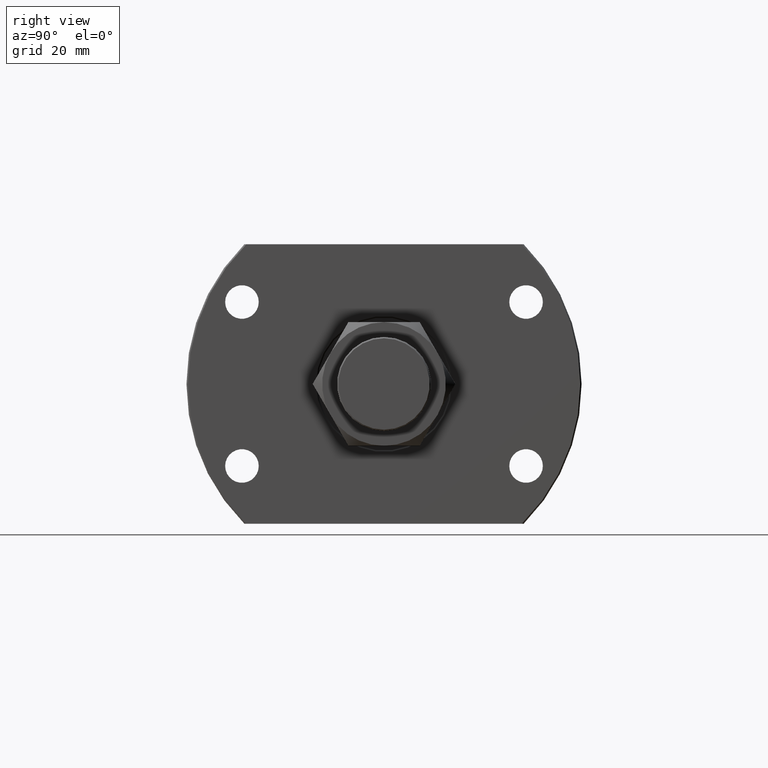
[diagram: clean part render]
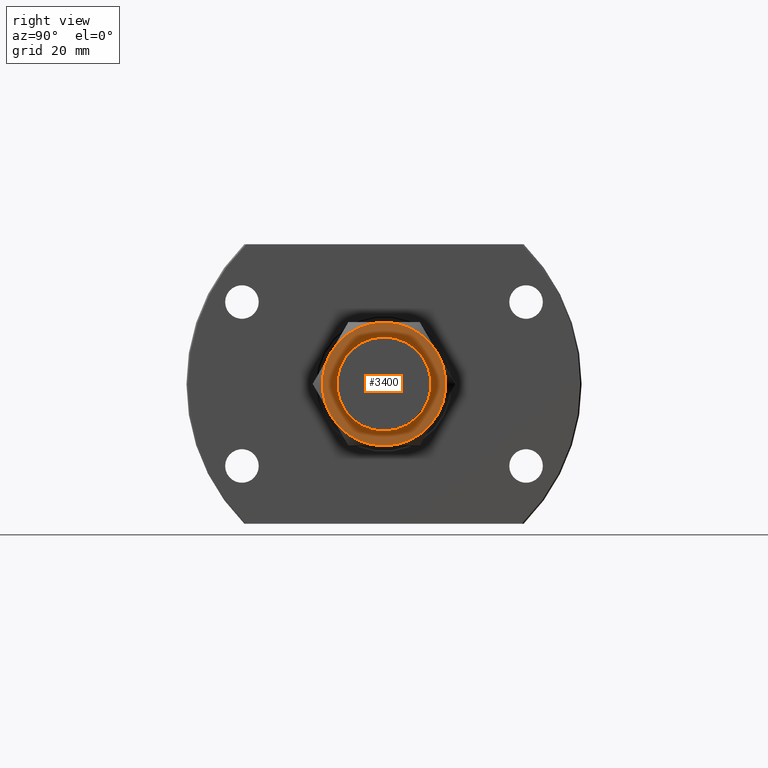
[diagram: same view with one face highlighted and labeled with its STEP entity id]
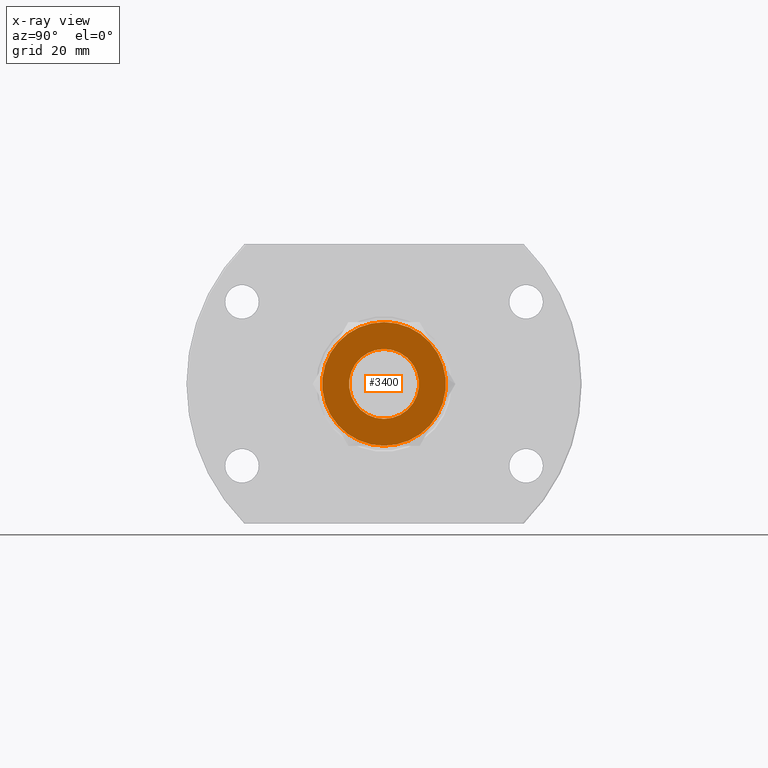
[diagram: x-ray of the same camera — body ghosted, the highlighted face saturated]
A machine part, right view. The second image highlights one B-rep face of the part: STEP entity #3400.
The next image is the same camera in x-ray: the body ghosted, the highlighted face saturated — about 0% of this face is hidden behind the body in this view.
In plain terms, the highlighted planar face has unit normal (1, 0, 0).
Its self-contained STEP definition (entity closure, byte-faithful):
#194 = DIRECTION ( 'NONE',  ( 1.000000000000000000, 0.000000000000000000, 0.000000000000000000 ) ) ;
#203 = CARTESIAN_POINT ( 'NONE',  ( 13.00000000000000000, 0.000000000000000000, 27.99999999999999645 ) ) ;
#348 = VERTEX_POINT ( 'NONE', #4882 ) ;
#407 = ORIENTED_EDGE ( 'NONE', *, *, #1292, .T. ) ;
#443 = CIRCLE ( 'NONE', #3271, 22.99999999999999645 ) ;
#538 = CIRCLE ( 'NONE', #1283, 13.00000000000000000 ) ;
#572 = ORIENTED_EDGE ( 'NONE', *, *, #3226, .T. ) ;
#651 = CARTESIAN_POINT ( 'NONE',  ( 0.000000000000000000, 0.000000000000000000, 28.00000000000000000 ) ) ;
#676 = FACE_BOUND ( 'NONE', #4823, .T. ) ;
#751 = PLANE ( 'NONE',  #4411 ) ;
#778 = VERTEX_POINT ( 'NONE', #3655 ) ;
#829 = EDGE_CURVE ( 'NONE', #4200, #2683, #3829, .T. ) ;
#923 = CARTESIAN_POINT ( 'NONE',  ( 0.000000000000000000, 0.000000000000000000, 28.00000000000000000 ) ) ;
#944 = ORIENTED_EDGE ( 'NONE', *, *, #3963, .T. ) ;
#986 = DIRECTION ( 'NONE',  ( 1.000000000000000000, 0.000000000000000000, 0.000000000000000000 ) ) ;
#995 = DIRECTION ( 'NONE',  ( 1.000000000000000000, 0.000000000000000000, 0.000000000000000000 ) ) ;
#1144 = ORIENTED_EDGE ( 'NONE', *, *, #829, .T. ) ;
#1283 = AXIS2_PLACEMENT_3D ( 'NONE', #1726, #1360, #986 ) ;
#1292 = EDGE_CURVE ( 'NONE', #2601, #3393, #2293, .T. ) ;
#1339 = CARTESIAN_POINT ( 'NONE',  ( 0.000000000000000000, 0.000000000000000000, 28.00000000000000000 ) ) ;
#1360 = DIRECTION ( 'NONE',  ( -0.000000000000000000, -0.000000000000000000, -1.000000000000000000 ) ) ;
#1414 = AXIS2_PLACEMENT_3D ( 'NONE', #4801, #4775, #995 ) ;
#1435 = AXIS2_PLACEMENT_3D ( 'NONE', #4104, #4819, #2526 ) ;
#1458 = CARTESIAN_POINT ( 'NONE',  ( -11.49999999999999822, 19.91858428704208706, 28.00000000000000000 ) ) ;
#1463 = ORIENTED_EDGE ( 'NONE', *, *, #1858, .T. ) ;
#1501 = EDGE_LOOP ( 'NONE', ( #2761, #1463, #407, #572, #1144, #944 ) ) ;
#1503 = DIRECTION ( 'NONE',  ( 1.000000000000000000, 0.000000000000000000, -0.000000000000000000 ) ) ;
#1579 = DIRECTION ( 'NONE',  ( -0.000000000000000000, -0.000000000000000000, -1.000000000000000000 ) ) ;
#1630 = CARTESIAN_POINT ( 'NONE',  ( 0.000000000000000000, 0.000000000000000000, 28.00000000000000000 ) ) ;
#1665 = DIRECTION ( 'NONE',  ( 1.000000000000000000, 0.000000000000000000, 0.000000000000000000 ) ) ;
#1668 = CARTESIAN_POINT ( 'NONE',  ( 0.000000000000000000, 0.000000000000000000, 28.00000000000000000 ) ) ;
#1696 = DIRECTION ( 'NONE',  ( 1.000000000000000000, 0.000000000000000000, 0.000000000000000000 ) ) ;
#1715 = DIRECTION ( 'NONE',  ( 0.000000000000000000, 0.000000000000000000, 1.000000000000000000 ) ) ;
#1726 = CARTESIAN_POINT ( 'NONE',  ( 0.000000000000000000, 0.000000000000000000, 28.00000000000000000 ) ) ;
#1780 = ORIENTED_EDGE ( 'NONE', *, *, #2627, .T. ) ;
#1858 = EDGE_CURVE ( 'NONE', #778, #2601, #443, .T. ) ;
#2006 = CARTESIAN_POINT ( 'NONE',  ( 11.49999999999999822, 19.91858428704208706, 28.00000000000000000 ) ) ;
#2293 = CIRCLE ( 'NONE', #4075, 22.99999999999999645 ) ;
#2473 = AXIS2_PLACEMENT_3D ( 'NONE', #923, #3686, #1696 ) ;
#2526 = DIRECTION ( 'NONE',  ( 1.000000000000000000, 0.000000000000000000, 0.000000000000000000 ) ) ;
#2601 = VERTEX_POINT ( 'NONE', #2006 ) ;
#2627 = EDGE_CURVE ( 'NONE', #3650, #3358, #4557, .T. ) ;
#2657 = FACE_OUTER_BOUND ( 'NONE', #1501, .T. ) ;
#2683 = VERTEX_POINT ( 'NONE', #3192 ) ;
#2761 = ORIENTED_EDGE ( 'NONE', *, *, #2841, .T. ) ;
#2841 = EDGE_CURVE ( 'NONE', #348, #778, #4248, .T. ) ;
#2989 = CARTESIAN_POINT ( 'NONE',  ( -13.00000000000000000, 1.592040838891559095E-15, 27.99999999999999645 ) ) ;
#3041 = AXIS2_PLACEMENT_3D ( 'NONE', #1630, #1579, #3552 ) ;
#3192 = CARTESIAN_POINT ( 'NONE',  ( -11.50000000000000533, -19.91858428704208706, 28.00000000000000000 ) ) ;
#3226 = EDGE_CURVE ( 'NONE', #3393, #4200, #3694, .T. ) ;
#3271 = AXIS2_PLACEMENT_3D ( 'NONE', #1339, #3563, #1665 ) ;
#3358 = VERTEX_POINT ( 'NONE', #2989 ) ;
#3393 = VERTEX_POINT ( 'NONE', #1458 ) ;
#3400 = ADVANCED_FACE ( 'NONE', ( #676, #2657 ), #751, .T. ) ;
#3518 = DIRECTION ( 'NONE',  ( 1.000000000000000000, 0.000000000000000000, 0.000000000000000000 ) ) ;
#3552 = DIRECTION ( 'NONE',  ( 1.000000000000000000, 0.000000000000000000, 0.000000000000000000 ) ) ;
#3563 = DIRECTION ( 'NONE',  ( 0.000000000000000000, 0.000000000000000000, 1.000000000000000000 ) ) ;
#3650 = VERTEX_POINT ( 'NONE', #203 ) ;
#3655 = CARTESIAN_POINT ( 'NONE',  ( 22.99999999999999645, 0.000000000000000000, 28.00000000000000000 ) ) ;
#3686 = DIRECTION ( 'NONE',  ( 0.000000000000000000, 0.000000000000000000, 1.000000000000000000 ) ) ;
#3694 = CIRCLE ( 'NONE', #1435, 22.99999999999999645 ) ;
#3785 = CARTESIAN_POINT ( 'NONE',  ( -22.99999999999999645, 0.000000000000000000, 28.00000000000000000 ) ) ;
#3829 = CIRCLE ( 'NONE', #1414, 22.99999999999999645 ) ;
#3963 = EDGE_CURVE ( 'NONE', #2683, #348, #4556, .T. ) ;
#4075 = AXIS2_PLACEMENT_3D ( 'NONE', #4667, #4245, #3518 ) ;
#4104 = CARTESIAN_POINT ( 'NONE',  ( 0.000000000000000000, 0.000000000000000000, 28.00000000000000000 ) ) ;
#4200 = VERTEX_POINT ( 'NONE', #3785 ) ;
#4245 = DIRECTION ( 'NONE',  ( 0.000000000000000000, 0.000000000000000000, 1.000000000000000000 ) ) ;
#4246 = ORIENTED_EDGE ( 'NONE', *, *, #4959, .T. ) ;
#4248 = CIRCLE ( 'NONE', #4957, 22.99999999999999645 ) ;
#4411 = AXIS2_PLACEMENT_3D ( 'NONE', #651, #4966, #1503 ) ;
#4556 = CIRCLE ( 'NONE', #2473, 22.99999999999999645 ) ;
#4557 = CIRCLE ( 'NONE', #3041, 13.00000000000000000 ) ;
#4667 = CARTESIAN_POINT ( 'NONE',  ( 0.000000000000000000, 0.000000000000000000, 28.00000000000000000 ) ) ;
#4775 = DIRECTION ( 'NONE',  ( 0.000000000000000000, 0.000000000000000000, 1.000000000000000000 ) ) ;
#4801 = CARTESIAN_POINT ( 'NONE',  ( 0.000000000000000000, 0.000000000000000000, 28.00000000000000000 ) ) ;
#4819 = DIRECTION ( 'NONE',  ( 0.000000000000000000, 0.000000000000000000, 1.000000000000000000 ) ) ;
#4823 = EDGE_LOOP ( 'NONE', ( #1780, #4246 ) ) ;
#4882 = CARTESIAN_POINT ( 'NONE',  ( 11.50000000000000533, -19.91858428704207995, 28.00000000000000000 ) ) ;
#4957 = AXIS2_PLACEMENT_3D ( 'NONE', #1668, #1715, #194 ) ;
#4959 = EDGE_CURVE ( 'NONE', #3358, #3650, #538, .T. ) ;
#4966 = DIRECTION ( 'NONE',  ( 0.000000000000000000, 0.000000000000000000, 1.000000000000000000 ) ) ;